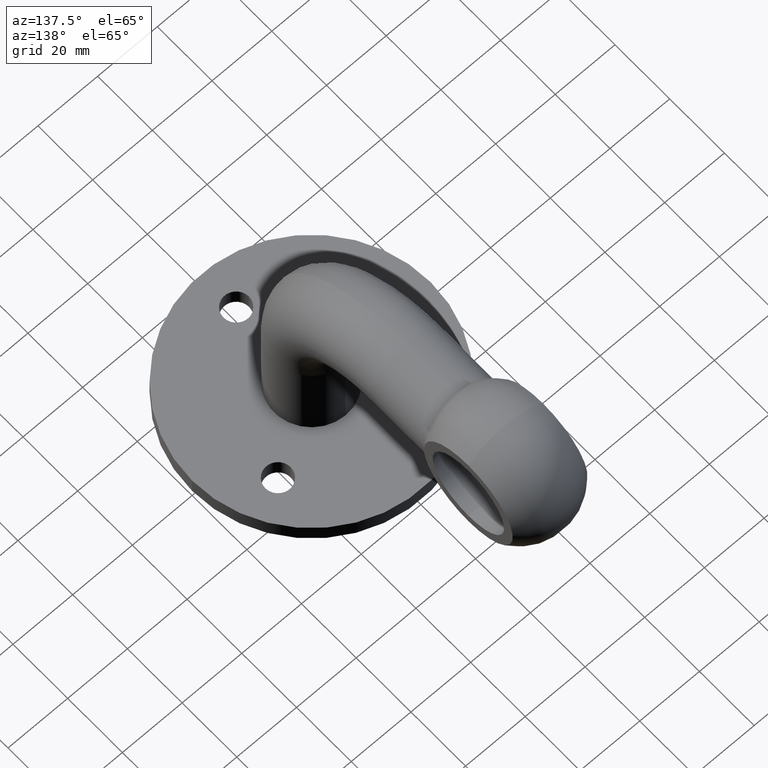
[diagram: clean part render]
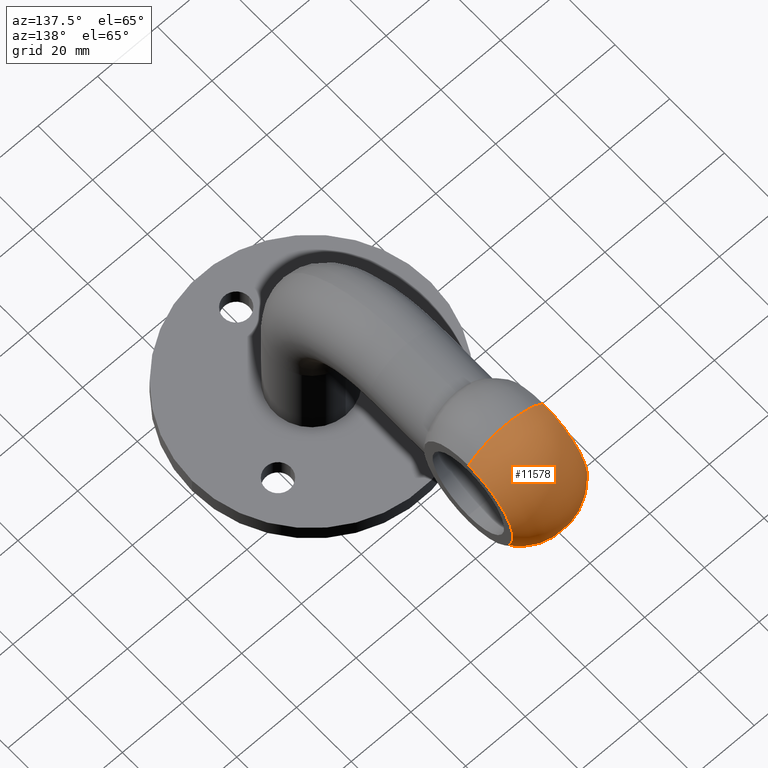
[diagram: same view with one face highlighted and labeled with its STEP entity id]
A machine part, auxiliary view. The second image highlights one B-rep face of the part: STEP entity #11578.
In plain terms, the highlighted toroidal blend (fillet) surface has major radius 5.5 mm and minor (blend) radius 16.5 mm.
Its self-contained STEP definition (entity closure, byte-faithful):
#439 = DIRECTION ( 'NONE',  ( -1.000000000000000000, -0.000000000000000000, -0.000000000000000000 ) ) ;
#1134 = ORIENTED_EDGE ( 'NONE', *, *, #8998, .T. ) ;
#1301 = CARTESIAN_POINT ( 'NONE',  ( 12.50000000000000000, 71.00000000000000000, 54.72967038573099785 ) ) ;
#1431 = DIRECTION ( 'NONE',  ( 0.000000000000000000, 0.000000000000000000, 1.000000000000000000 ) ) ;
#1619 = CARTESIAN_POINT ( 'NONE',  ( 0.000000000000000000, 71.00000000000000000, 71.00000000000000000 ) ) ;
#1762 = CARTESIAN_POINT ( 'NONE',  ( -12.49999999999999645, 71.00000000000000000, 87.27032961426898794 ) ) ;
#2097 = AXIS2_PLACEMENT_3D ( 'NONE', #1619, #11002, #10091 ) ;
#2919 = DIRECTION ( 'NONE',  ( 0.000000000000000000, 0.000000000000000000, 1.000000000000000000 ) ) ;
#3374 = DIRECTION ( 'NONE',  ( 0.000000000000000000, -1.000000000000000000, 0.000000000000000000 ) ) ;
#3652 = CARTESIAN_POINT ( 'NONE',  ( -12.49999999999999645, 71.00000000000000000, 54.72967038573099785 ) ) ;
#3819 = CIRCLE ( 'NONE', #5033, 16.50000000000000000 ) ;
#4044 = ORIENTED_EDGE ( 'NONE', *, *, #10152, .T. ) ;
#4192 = EDGE_LOOP ( 'NONE', ( #1134, #4044, #9972, #6744 ) ) ;
#4458 = AXIS2_PLACEMENT_3D ( 'NONE', #8580, #10438, #4922 ) ;
#4922 = DIRECTION ( 'NONE',  ( 0.000000000000000000, 0.000000000000000000, 1.000000000000000000 ) ) ;
#5033 = AXIS2_PLACEMENT_3D ( 'NONE', #9074, #3374, #6312 ) ;
#5046 = VERTEX_POINT ( 'NONE', #1762 ) ;
#5328 = AXIS2_PLACEMENT_3D ( 'NONE', #7141, #439, #1431 ) ;
#5761 = DIRECTION ( 'NONE',  ( -0.000000000000000000, 1.000000000000000000, 1.224646799147353207E-16 ) ) ;
#5874 = VERTEX_POINT ( 'NONE', #1301 ) ;
#6122 = VERTEX_POINT ( 'NONE', #3652 ) ;
#6312 = DIRECTION ( 'NONE',  ( 0.000000000000000000, 0.000000000000000000, -1.000000000000000000 ) ) ;
#6744 = ORIENTED_EDGE ( 'NONE', *, *, #10645, .F. ) ;
#6796 = CARTESIAN_POINT ( 'NONE',  ( 0.000000000000000000, 71.00000000000000000, 65.50000000000000000 ) ) ;
#7141 = CARTESIAN_POINT ( 'NONE',  ( 12.50000000000000000, 71.00000000000000000, 71.00000000000000000 ) ) ;
#7238 = CIRCLE ( 'NONE', #4458, 16.27032961426899504 ) ;
#7316 = CARTESIAN_POINT ( 'NONE',  ( 12.50000000000000000, 71.00000000000000000, 87.27032961426898794 ) ) ;
#7670 = CIRCLE ( 'NONE', #9070, 16.50000000000000000 ) ;
#8580 = CARTESIAN_POINT ( 'NONE',  ( -12.49999999999999645, 71.00000000000000000, 71.00000000000000000 ) ) ;
#8998 = EDGE_CURVE ( 'NONE', #11530, #5874, #11356, .T. ) ;
#9070 = AXIS2_PLACEMENT_3D ( 'NONE', #6796, #5761, #2919 ) ;
#9074 = CARTESIAN_POINT ( 'NONE',  ( 0.000000000000000000, 71.00000000000000000, 76.49999999999998579 ) ) ;
#9522 = EDGE_CURVE ( 'NONE', #5046, #6122, #7238, .T. ) ;
#9972 = ORIENTED_EDGE ( 'NONE', *, *, #9522, .F. ) ;
#9984 = TOROIDAL_SURFACE ( 'NONE', #2097, 5.499999999999991118, 16.49999999999999645 ) ;
#10091 = DIRECTION ( 'NONE',  ( 0.000000000000000000, 0.000000000000000000, 1.000000000000000000 ) ) ;
#10152 = EDGE_CURVE ( 'NONE', #5874, #6122, #7670, .T. ) ;
#10438 = DIRECTION ( 'NONE',  ( -1.000000000000000000, -0.000000000000000000, -0.000000000000000000 ) ) ;
#10580 = FACE_OUTER_BOUND ( 'NONE', #4192, .T. ) ;
#10645 = EDGE_CURVE ( 'NONE', #11530, #5046, #3819, .T. ) ;
#11002 = DIRECTION ( 'NONE',  ( -1.000000000000000000, -0.000000000000000000, -0.000000000000000000 ) ) ;
#11356 = CIRCLE ( 'NONE', #5328, 16.27032961426899504 ) ;
#11530 = VERTEX_POINT ( 'NONE', #7316 ) ;
#11578 = ADVANCED_FACE ( 'NONE', ( #10580 ), #9984, .T. ) ;